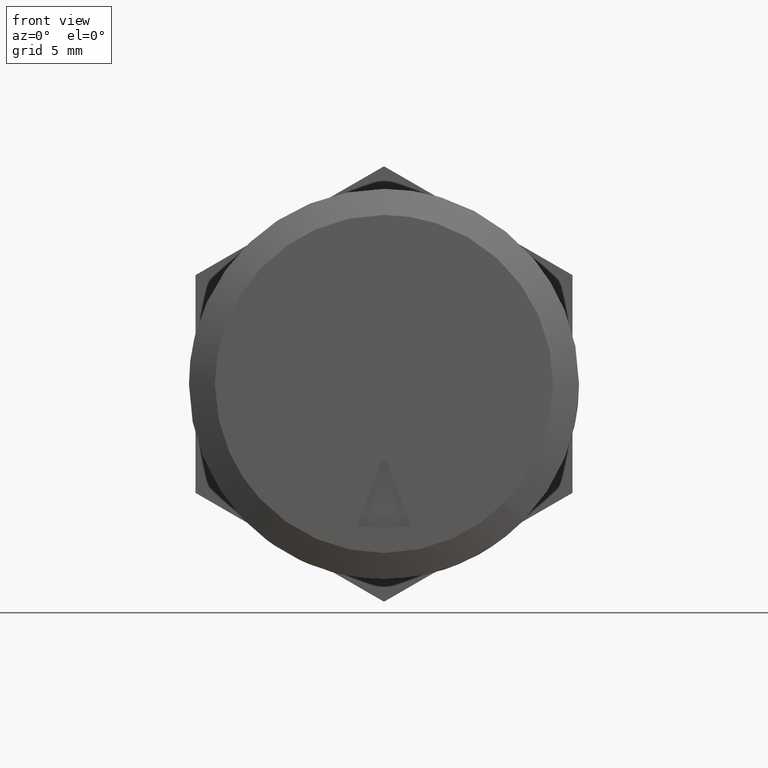
[diagram: clean part render]
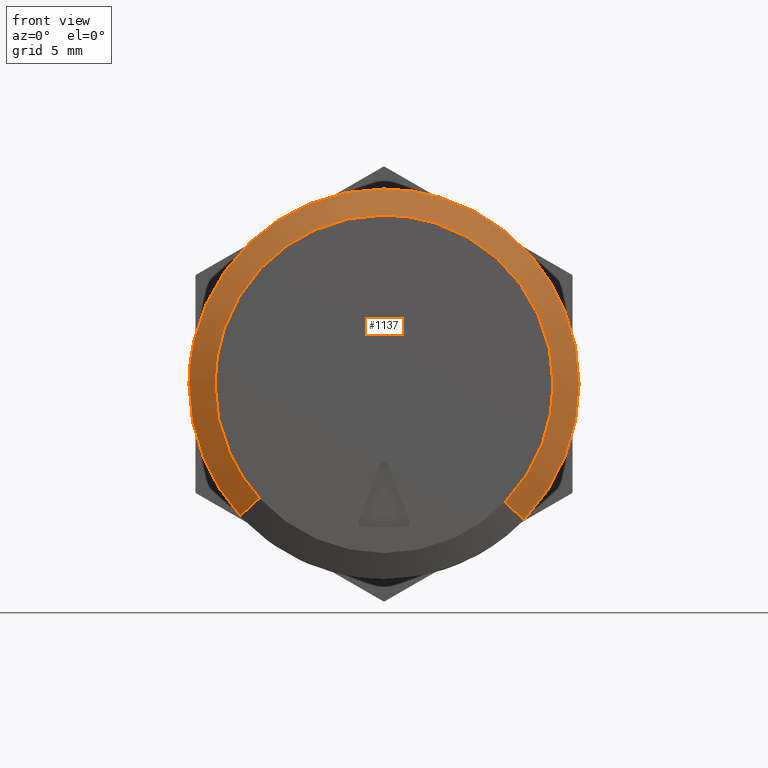
[diagram: same view with one face highlighted and labeled with its STEP entity id]
A machine part, front view. The second image highlights one B-rep face of the part: STEP entity #1137.
In plain terms, the highlighted face is a freeform B-spline surface patch.
Its self-contained STEP definition (entity closure, byte-faithful):
#913=CARTESIAN_POINT('',(-12.000000152438821,-9.316462147315200,-9.066615422653708));
#914=VERTEX_POINT('',#913);
#925=CARTESIAN_POINT('',(-11.999999848085141,9.584605882547256,-8.782673160848001));
#926=VERTEX_POINT('',#925);
#938=CARTESIAN_POINT('',(-10.999999858290280,11.059160522309121,-10.133853545054400));
#939=VERTEX_POINT('',#938);
#940=CARTESIAN_POINT('',(-11.999999848085141,9.584605882547256,-8.782673160848001));
#941=CARTESIAN_POINT('',(-10.999999858290280,11.059160522309121,-10.133853545054400));
#942=QUASI_UNIFORM_CURVE('',1,(#940,#941),.UNSPECIFIED.,.F.,.U.);
#943=EDGE_CURVE('',#926,#939,#942,.T.);
#958=CARTESIAN_POINT('',(-11.000000142198470,-10.749764124788189,-10.461479439573720));
#959=VERTEX_POINT('',#958);
#971=CARTESIAN_POINT('',(-12.000000152438821,-9.316462147315200,-9.066615422653708));
#972=CARTESIAN_POINT('',(-11.000000142198470,-10.749764124788189,-10.461479439573720));
#973=QUASI_UNIFORM_CURVE('',1,(#971,#972),.UNSPECIFIED.,.F.,.U.);
#974=EDGE_CURVE('',#914,#959,#973,.T.);
#979=CARTESIAN_POINT('',(-12.025000000000000,9.547741511691100,-8.748893188622795));
#980=CARTESIAN_POINT('',(-12.024999999999999,18.296634700313891,0.798848323068306));
#981=CARTESIAN_POINT('',(-12.025000000000000,8.748893188622795,9.547741511691100));
#982=CARTESIAN_POINT('',(-12.024999999999999,-0.798848323068306,18.296634700313891));
#983=CARTESIAN_POINT('',(-12.025000000000000,-9.547741511691100,8.748893188622795));
#984=CARTESIAN_POINT('',(-12.025000000000000,-17.809788889691507,-0.267549351226139));
#985=CARTESIAN_POINT('',(-12.024999999999999,-9.280630090308053,-9.031744301455204));
#986=CARTESIAN_POINT('',(-10.974375000000000,11.096945515663380,-10.168477112375211));
#987=CARTESIAN_POINT('',(-10.974374999999998,21.265422628038589,0.928468403288173));
#988=CARTESIAN_POINT('',(-10.974375000000000,10.168477112375211,11.096945515663380));
#989=CARTESIAN_POINT('',(-10.974374999999998,-0.928468403288173,21.265422628038589));
#990=CARTESIAN_POINT('',(-10.974375000000000,-11.096945515663380,10.168477112375211));
#991=CARTESIAN_POINT('',(-10.974375000000000,-20.699581855287228,-0.310961557733005));
#992=CARTESIAN_POINT('',(-10.974375000000000,-10.786492945694919,-10.497223275465460));
#1000=(BOUNDED_SURFACE()B_SPLINE_SURFACE(2,1,((#979,#986),(#980,#987),(#981,#988),(#982,#989),(#983,#990),(#984,#991),(#985,#992)),.UNSPECIFIED.,.F.,.F.,.U.)B_SPLINE_SURFACE_WITH_KNOTS((3,2,2,3),(2,2),(0.0,24.937727522672191,49.875455045344367,73.815673467109676),(0.0,2.349268918860725),.UNSPECIFIED.)GEOMETRIC_REPRESENTATION_ITEM()RATIONAL_B_SPLINE_SURFACE(((1.0,1.0),(0.707106781186548,0.707106781186548),(1.0,1.0),(0.707106781186548,0.707106781186548),(1.0,1.0),(0.718822509939086,0.718822509939086),(0.977505800795127,0.977505800795127)))REPRESENTATION_ITEM('')SURFACE());
#1001=CARTESIAN_POINT('',(-12.0,-12.999999999999909,0.000001524951381));
#1002=VERTEX_POINT('',#1001);
#1003=CARTESIAN_POINT('',(-12.000000152438821,-9.316462147315200,-9.066615422653708));
#1004=CARTESIAN_POINT('',(-12.000000141421310,-9.954390171507482,-8.411326201624489));
#1005=CARTESIAN_POINT('',(-12.000000120582150,-10.928553954523190,-7.171872057518602));
#1006=CARTESIAN_POINT('',(-12.000000088628889,-11.931018232567750,-5.271387699067865));
#1007=CARTESIAN_POINT('',(-12.000000062098930,-12.495723037490320,-3.693460596470620));
#1008=CARTESIAN_POINT('',(-12.000000032947950,-12.894592737089971,-1.959646847090359));
#1009=CARTESIAN_POINT('',(-12.000000012740109,-13.000077419382309,-0.757743193792093));
#1010=CARTESIAN_POINT('',(-12.0,-12.999999999999909,0.000001524951381));
#1011=B_SPLINE_CURVE_WITH_KNOTS('',3,(#1003,#1004,#1005,#1006,#1007,#1008,#1009,#1010),.UNSPECIFIED.,.F.,.U.,(4,1,1,1,1,4),(0.000000016242499,2.743540714113641,4.703216927274964,6.427715221822490,7.760300117512838,10.033518823041220),.UNSPECIFIED.);
#1012=EDGE_CURVE('',#914,#1002,#1011,.T.);
#1013=ORIENTED_EDGE('',*,*,#1012,.F.);
#1014=ORIENTED_EDGE('',*,*,#974,.T.);
#1015=CARTESIAN_POINT('',(-11.0,-14.999999999999931,0.000001422510098));
#1016=VERTEX_POINT('',#1015);
#1017=CARTESIAN_POINT('',(-11.000000142198470,-10.749764124788189,-10.461479439573720));
#1018=CARTESIAN_POINT('',(-11.000000132214490,-11.464783958317160,-9.726962444310461));
#1019=CARTESIAN_POINT('',(-11.000000111858631,-12.649231257879370,-8.229388924258208));
#1020=CARTESIAN_POINT('',(-11.000000077548711,-13.961382222991370,-5.705222426500392));
#1021=CARTESIAN_POINT('',(-11.000000040569230,-14.798331567200259,-2.984667622099229));
#1022=CARTESIAN_POINT('',(-11.000000013933411,-15.000152784567170,-1.025068627617737));
#1023=CARTESIAN_POINT('',(-11.0,-14.999999999999931,0.000001422510098));
#1024=B_SPLINE_CURVE_WITH_KNOTS('',3,(#1017,#1018,#1019,#1020,#1021,#1022,#1023),.UNSPECIFIED.,.F.,.U.,(4,1,1,1,4),(0.000000015576903,3.075177202556199,5.698141417908051,8.501959174312031,11.577136824968390),.UNSPECIFIED.);
#1025=EDGE_CURVE('',#959,#1016,#1024,.T.);
#1026=ORIENTED_EDGE('',*,*,#1025,.T.);
#1027=CARTESIAN_POINT('',(-11.000000000000901,-11.485339263493330,9.648160058334472));
#1028=VERTEX_POINT('',#1027);
#1029=CARTESIAN_POINT('',(-11.0,-14.999999999999931,0.000001422510098));
#1030=CARTESIAN_POINT('',(-11.000000000000080,-15.000028516856039,0.709603732818874));
#1031=CARTESIAN_POINT('',(-11.000000000000179,-14.895238358557780,2.183383154606998));
#1032=CARTESIAN_POINT('',(-11.000000000000441,-14.432809046699379,4.267728825274006));
#1033=CARTESIAN_POINT('',(-11.000000000000520,-13.777121799901691,6.008181320772510));
#1034=CARTESIAN_POINT('',(-11.000000000000790,-12.862624540301921,7.811072892097385));
#1035=CARTESIAN_POINT('',(-11.000000000000799,-12.082294762323150,8.937712267832831));
#1036=CARTESIAN_POINT('',(-11.000000000000901,-11.485339263493330,9.648160058334472));
#1037=B_SPLINE_CURVE_WITH_KNOTS('',3,(#1029,#1030,#1031,#1032,#1033,#1034,#1035,#1036),.UNSPECIFIED.,.F.,.U.,(4,1,1,1,1,4),(3.433401E-009,2.128813245706258,4.421382358094586,6.386439374325764,7.696479025472664,10.480311880113341),.UNSPECIFIED.);
#1038=EDGE_CURVE('',#1016,#1028,#1037,.T.);
#1039=ORIENTED_EDGE('',*,*,#1038,.T.);
#1040=CARTESIAN_POINT('',(-11.0,0.0,15.0));
#1041=VERTEX_POINT('',#1040);
#1042=CARTESIAN_POINT('',(-11.000000000000901,-11.485339263493330,9.648160058334472));
#1043=CARTESIAN_POINT('',(-11.000000000000879,-10.849970465704690,10.404696333622329));
#1044=CARTESIAN_POINT('',(-11.000000000000711,-9.649474450543627,11.576270386297219));
#1045=CARTESIAN_POINT('',(-11.000000000000650,-7.881767206378381,12.802206810816820));
#1046=CARTESIAN_POINT('',(-11.000000000000460,-6.197093633887419,13.702024285926120));
#1047=CARTESIAN_POINT('',(-11.000000000000361,-4.571413186577252,14.328694259215970));
#1048=CARTESIAN_POINT('',(-11.000000000000190,-2.418704528305914,14.859756188380890));
#1049=CARTESIAN_POINT('',(-11.000000000000080,-0.953884648197880,15.000123731738030));
#1050=CARTESIAN_POINT('',(-11.0,0.0,15.0));
#1051=B_SPLINE_CURVE_WITH_KNOTS('',3,(#1042,#1043,#1044,#1045,#1046,#1047,#1048,#1049,#1050),.UNSPECIFIED.,.F.,.U.,(4,1,1,1,1,1,4),(0.000000022182105,2.963823833943989,5.007854269155128,6.438675584558546,8.687068381349086,10.220088413642580,13.081709217957281),.UNSPECIFIED.);
#1052=EDGE_CURVE('',#1028,#1041,#1051,.T.);
#1053=ORIENTED_EDGE('',*,*,#1052,.T.);
#1054=CARTESIAN_POINT('',(-10.999999999998650,10.289240211363170,10.914738898507450));
#1055=VERTEX_POINT('',#1054);
#1056=CARTESIAN_POINT('',(-11.0,0.0,15.0));
#1057=CARTESIAN_POINT('',(-10.999999999999890,0.826775742117924,15.000054446896520));
#1058=CARTESIAN_POINT('',(-10.999999999999670,2.480303287098415,14.862935759147200));
#1059=CARTESIAN_POINT('',(-10.999999999999320,5.122801707860806,14.193937707988310));
#1060=CARTESIAN_POINT('',(-10.999999999999060,7.813156866663849,12.937062787047870));
#1061=CARTESIAN_POINT('',(-10.999999999998730,9.515860894052890,11.644033049099200));
#1062=CARTESIAN_POINT('',(-10.999999999998650,10.289240211363170,10.914738898507450));
#1063=B_SPLINE_CURVE_WITH_KNOTS('',3,(#1056,#1057,#1058,#1059,#1060,#1061,#1062),.UNSPECIFIED.,.F.,.U.,(4,1,1,1,4),(0.000000014935594,2.480323248618557,4.960665449999707,8.149638392527688,11.338630302753700),.UNSPECIFIED.);
#1064=EDGE_CURVE('',#1041,#1055,#1063,.T.);
#1065=ORIENTED_EDGE('',*,*,#1064,.T.);
#1066=CARTESIAN_POINT('',(-11.0,14.999999999999931,-0.000001422510295));
#1067=VERTEX_POINT('',#1066);
#1068=CARTESIAN_POINT('',(-10.999999999998650,10.289240211363170,10.914738898507450));
#1069=CARTESIAN_POINT('',(-10.999999999998771,11.192819890633460,10.063390633962610));
#1070=CARTESIAN_POINT('',(-10.999999999998950,12.418600304171880,8.579629308446831));
#1071=CARTESIAN_POINT('',(-10.999999999999170,13.626272336829210,6.367466241776771));
#1072=CARTESIAN_POINT('',(-10.999999999999501,14.252878542577230,4.763471356522976));
#1073=CARTESIAN_POINT('',(-10.999999999999449,14.825388101011770,2.673775032058098));
#1074=CARTESIAN_POINT('',(-10.999999999999950,15.000245361231951,1.114132545735425));
#1075=CARTESIAN_POINT('',(-11.0,14.999999999999931,-0.000001422510295));
#1076=B_SPLINE_CURVE_WITH_KNOTS('',3,(#1068,#1069,#1070,#1071,#1072,#1073,#1074,#1075),.UNSPECIFIED.,.F.,.U.,(4,1,1,1,1,4),(0.000000018004869,3.724303130287144,5.729714807581045,7.544097495164670,8.881028518158200,12.223352861042519),.UNSPECIFIED.);
#1077=EDGE_CURVE('',#1055,#1067,#1076,.T.);
#1078=ORIENTED_EDGE('',*,*,#1077,.T.);
#1079=CARTESIAN_POINT('',(-11.0,14.999999999999931,-0.000001422510295));
#1080=CARTESIAN_POINT('',(-10.999999988654860,15.000065548023530,-0.811310787026175));
#1081=CARTESIAN_POINT('',(-10.999999969611480,14.889222672172670,-2.173122810946269));
#1082=CARTESIAN_POINT('',(-10.999999941081260,14.438754628828390,-4.213361641621698));
#1083=CARTESIAN_POINT('',(-10.999999915846949,13.790662466564360,-6.017892517971813));
#1084=CARTESIAN_POINT('',(-10.999999886691860,12.702600476883440,-8.102824937392207));
#1085=CARTESIAN_POINT('',(-10.999999868446000,11.724834267113000,-9.407605592951400));
#1086=CARTESIAN_POINT('',(-10.999999858290280,11.059160522309121,-10.133853545054400));
#1087=B_SPLINE_CURVE_WITH_KNOTS('',3,(#1079,#1080,#1081,#1082,#1083,#1084,#1085,#1086),.UNSPECIFIED.,.F.,.U.,(4,1,1,1,1,4),(0.000000014461319,2.433918110157595,4.085509231139096,6.258637743337544,8.171014519846322,11.126488364201141),.UNSPECIFIED.);
#1088=EDGE_CURVE('',#1067,#939,#1087,.T.);
#1089=ORIENTED_EDGE('',*,*,#1088,.T.);
#1090=ORIENTED_EDGE('',*,*,#943,.F.);
#1091=CARTESIAN_POINT('',(-12.0,12.999999999999909,-0.000001524951578));
#1092=VERTEX_POINT('',#1091);
#1093=CARTESIAN_POINT('',(-12.0,12.999999999999909,-0.000001524951578));
#1094=CARTESIAN_POINT('',(-11.999999980018771,13.000385948258010,-1.155180492682295));
#1095=CARTESIAN_POINT('',(-11.999999944404379,12.723661137702811,-3.214155735879978));
#1096=CARTESIAN_POINT('',(-11.999999892303761,11.552321180139939,-6.226260350726116));
#1097=CARTESIAN_POINT('',(-11.999999862812320,10.365318962939631,-7.931247397927341));
#1098=CARTESIAN_POINT('',(-11.999999848085141,9.584605882547256,-8.782673160848001));
#1099=B_SPLINE_CURVE_WITH_KNOTS('',3,(#1093,#1094,#1095,#1096,#1097,#1098),.UNSPECIFIED.,.F.,.U.,(4,1,1,4),(4.080686E-009,3.465452551908194,6.177544267561840,9.642996815408528),.UNSPECIFIED.);
#1100=EDGE_CURVE('',#1092,#926,#1099,.T.);
#1101=ORIENTED_EDGE('',*,*,#1100,.F.);
#1102=CARTESIAN_POINT('',(-12.0,0.0,13.0));
#1103=VERTEX_POINT('',#1102);
#1104=CARTESIAN_POINT('',(-12.0,0.0,13.0));
#1105=CARTESIAN_POINT('',(-12.000000000000020,0.983813325752117,13.000223143433690));
#1106=CARTESIAN_POINT('',(-12.0,2.419506724860229,12.836175065007760));
#1107=CARTESIAN_POINT('',(-12.000000000000011,4.518261988779834,12.234543283883029));
#1108=CARTESIAN_POINT('',(-12.0,6.226117525003328,11.477522776477800));
#1109=CARTESIAN_POINT('',(-11.999999999999989,7.899220347690285,10.381673838327000));
#1110=CARTESIAN_POINT('',(-11.999999999999980,9.316680527343044,9.128314430869544));
#1111=CARTESIAN_POINT('',(-12.0,10.405938269971120,7.849754184187671));
#1112=CARTESIAN_POINT('',(-12.000000000000050,11.441731982581141,6.268359644291379));
#1113=CARTESIAN_POINT('',(-12.000000000000041,12.162885517440740,4.719075871125378));
#1114=CARTESIAN_POINT('',(-12.0,12.820823986583820,2.525841224548165));
#1115=CARTESIAN_POINT('',(-12.000000000000069,13.000282108281329,1.037003874066209));
#1116=CARTESIAN_POINT('',(-12.0,12.999999999999909,-0.000001524951578));
#1117=B_SPLINE_CURVE_WITH_KNOTS('',3,(#1104,#1105,#1106,#1107,#1108,#1109,#1110,#1111,#1112,#1113,#1114,#1115,#1116),.UNSPECIFIED.,.F.,.U.,(4,1,1,1,1,1,1,1,1,1,4),(0.000000063733694,2.951365858185291,4.307420317168457,6.540914454134750,8.535100663423348,10.289919153352949,12.204351521815040,13.560406796004211,15.953428008186901,17.309470791582552,20.420385141431389),.UNSPECIFIED.);
#1118=EDGE_CURVE('',#1103,#1092,#1117,.T.);
#1119=ORIENTED_EDGE('',*,*,#1118,.F.);
#1120=CARTESIAN_POINT('',(-12.0,-12.999999999999909,0.000001524951381));
#1121=CARTESIAN_POINT('',(-12.0,-13.000109554960700,0.877438647057232));
#1122=CARTESIAN_POINT('',(-12.000000000000020,-12.824393500372990,2.605689032999154));
#1123=CARTESIAN_POINT('',(-11.999999999999959,-12.128113229962111,4.851348779831528));
#1124=CARTESIAN_POINT('',(-12.000000000000020,-11.235746822990491,6.610459858897188));
#1125=CARTESIAN_POINT('',(-11.999999999999989,-10.080819175212531,8.305184580099553));
#1126=CARTESIAN_POINT('',(-12.000000000000041,-8.637911342323438,9.811493114748716));
#1127=CARTESIAN_POINT('',(-11.999999999999920,-6.952387201545800,11.029572369780389));
#1128=CARTESIAN_POINT('',(-12.000000000000041,-5.287393600638901,11.926132856466390));
#1129=CARTESIAN_POINT('',(-12.000000000000069,-3.030993108161917,12.749305796638140));
#1130=CARTESIAN_POINT('',(-11.999999999999750,-1.143358399296071,13.000344155762710));
#1131=CARTESIAN_POINT('',(-12.0,0.0,13.0));
#1132=B_SPLINE_CURVE_WITH_KNOTS('',3,(#1120,#1121,#1122,#1123,#1124,#1125,#1126,#1127,#1128,#1129,#1130,#1131),.UNSPECIFIED.,.F.,.U.,(4,1,1,1,1,1,1,1,1,4),(0.000000063916087,2.632296383756078,5.184863639251589,7.019514645310133,8.535099944566220,11.326898614056841,13.241340694329160,14.756918642442930,16.990405842883749,20.420383422452790),.UNSPECIFIED.);
#1133=EDGE_CURVE('',#1002,#1103,#1132,.T.);
#1134=ORIENTED_EDGE('',*,*,#1133,.F.);
#1135=EDGE_LOOP('',(#1013,#1014,#1026,#1039,#1053,#1065,#1078,#1089,#1090,#1101,#1119,#1134));
#1136=FACE_OUTER_BOUND('',#1135,.T.);
#1137=ADVANCED_FACE('',(#1136),#1000,.T.);